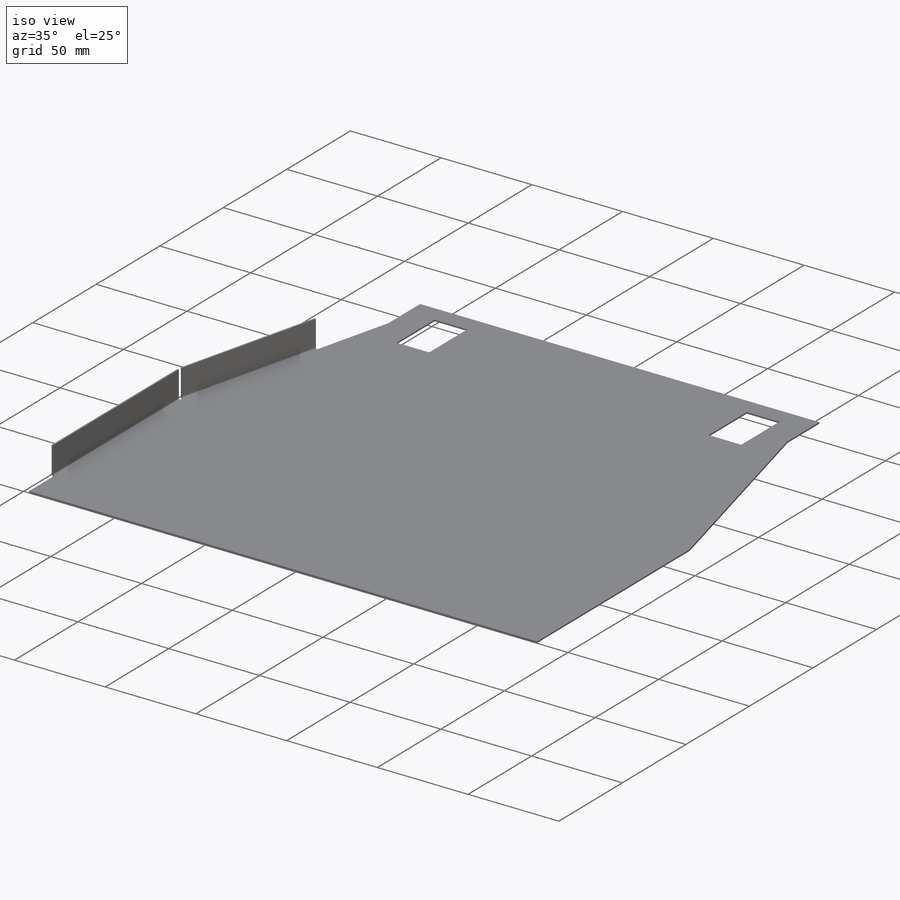
[diagram: iso view]
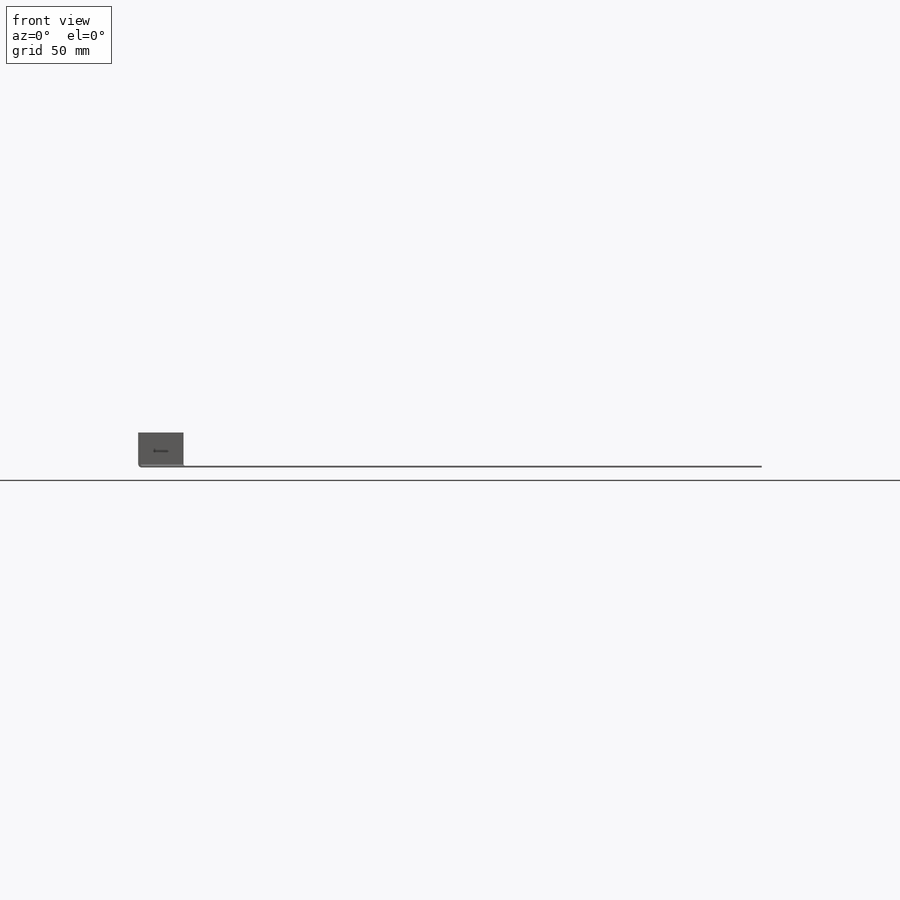
[diagram: front view]
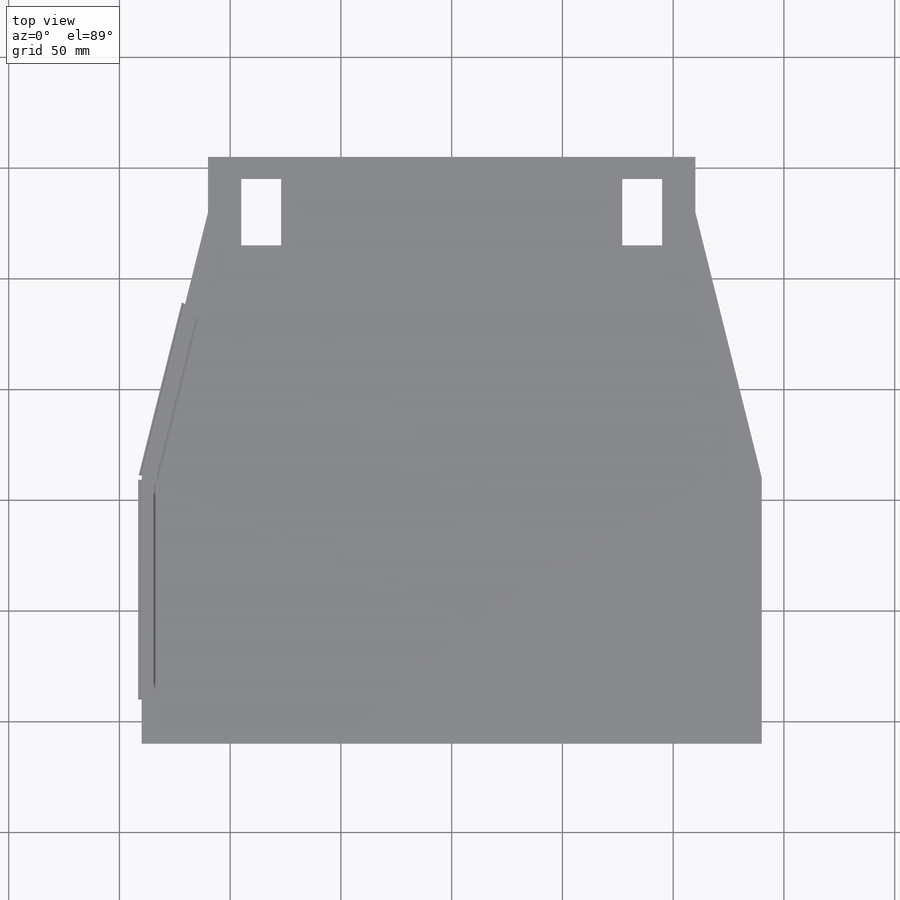
[diagram: top view]
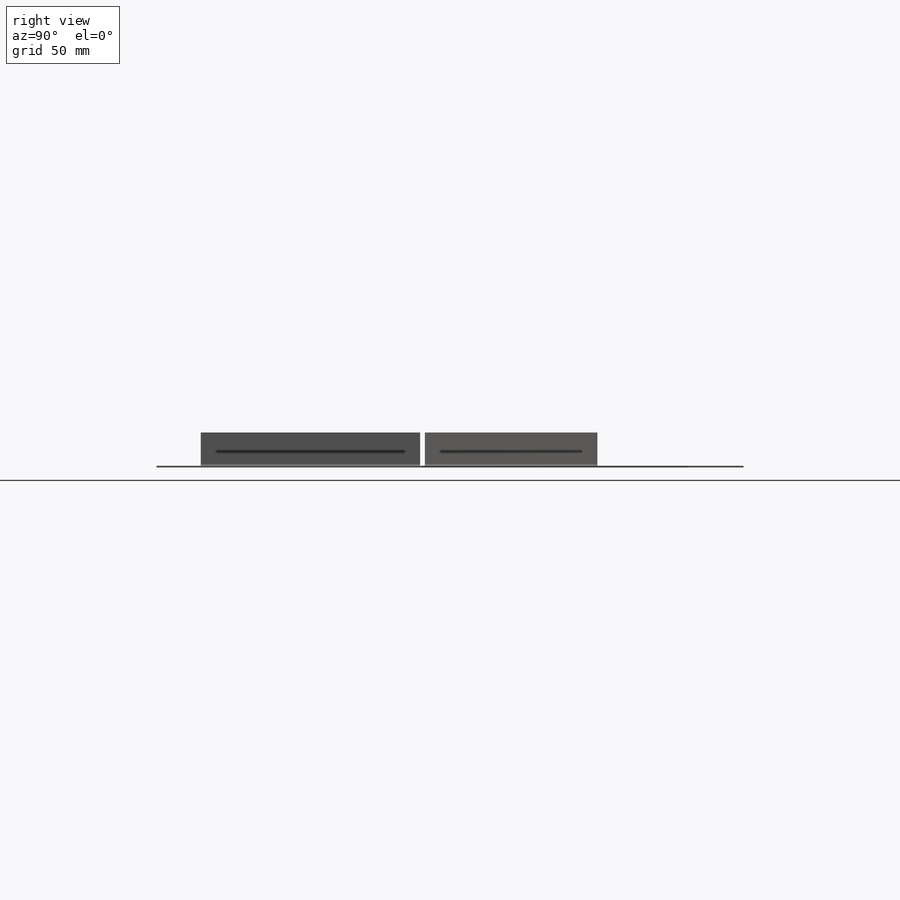
[diagram: right view]
SOLIDWORKS PART (.sldprt)
format: sldprt  version: not decoded by parser v0  size: 299,008 bytes
history: native  units: mm
features: sketch x7, sheet_metal_op x4, material x1, cut_extrude x1 + 2 further entries (+11 scaffold rows collapsed; 1 parser-record rows omitted)
feature tree (27):
  scaffold x11  (default folders/planes/origin — collapsed)
  material  "Material <not specified>"
  sketch  "Sketch7"  dims[D1=280.0mm D2=120.0mm]
  sketch  "Sketch10"  dims[D1=220.0mm D2=120.0mm D3=25.0mm]
  sketch  "Sketch11"  dims[D1=18.0mm D2=30.0mm D3=15.0mm]
  sheet_metal_op  "Sheet-Metal4"
  sheet_metal_op  "Base-Flange4"
  sheet_metal_op  "Tab2"
  cut_extrude  "Cut-Extrude1"  [1 undecoded]
  sketch  "Sketch18"  dims[c1.D1=15.0mm c1.D2=20.0mm c1.D3=1.0mm c2.D1=0.7366mm c2.D4=90.0deg c2.D5=1.0 c2.D8=0.4mm c2.D9=0.4mm c3.D1=0.7366mm c3.D2=500.0mm c3.D3=0.0mm c3.D6=10.0mm c3.D7=15.0mm c3.D8=1.0mm c3.Edge-Flange2=0.0]
  sketch  "Sketch22"  dims[D1=80.0mm D2=1.0mm]
  sheet_metal_op  "EdgeBend3"
  "Flat-Pattern4"
  sketch  "Bend-Lines4"
  sketch  "Bounding-Box4"
  "Flatten-<EdgeBend3>1"
  parser-record x1  (decoder bookkeeping rows leaked as tree rows — omitted from the tree; the rows remain in map.json)
decode coverage: 5 of 12 modeling features carry decoded parameters; 2 rows unclassified (native names shown)
note: 1 parameter value undecoded
note: suppression state not decoded; provenance and decode notes live in map.json
